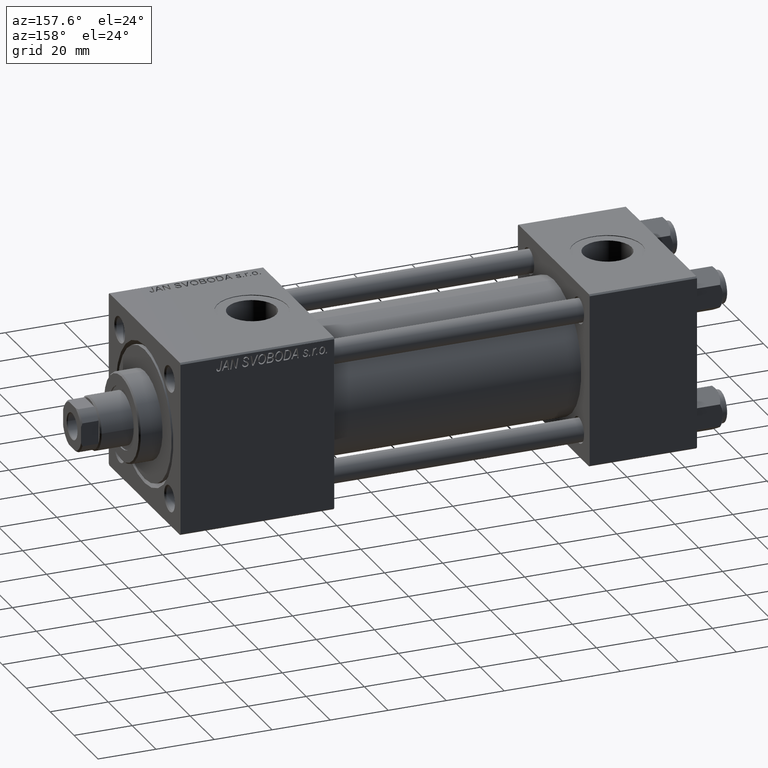
[diagram: clean part render]
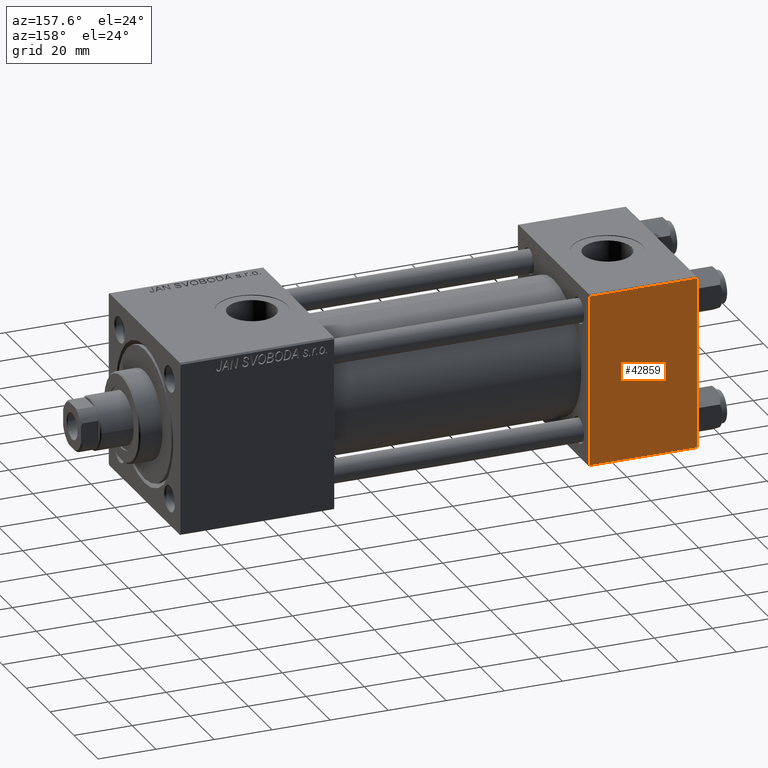
[diagram: same view with one face highlighted and labeled with its STEP entity id]
A machine part, auxiliary view. The second image highlights one B-rep face of the part: STEP entity #42859.
In plain terms, the highlighted planar face has unit normal (0, 1, 0).
Its self-contained STEP definition (entity closure, byte-faithful):
#1184 = VERTEX_POINT ( 'NONE', #28170 ) ;
#1346 = DIRECTION ( 'NONE',  ( -1.000000000000000000, 0.000000000000000000, 0.000000000000000000 ) ) ;
#1980 = EDGE_CURVE ( 'NONE', #27691, #19787, #19592, .T. ) ;
#4794 = ORIENTED_EDGE ( 'NONE', *, *, #1980, .T. ) ;
#7045 = LINE ( 'NONE', #27021, #8107 ) ;
#7221 = AXIS2_PLACEMENT_3D ( 'NONE', #27472, #43489, #51098 ) ;
#7757 = CARTESIAN_POINT ( 'NONE',  ( 37.00000000000000000, 29.99999999999999289, 29.50000000000000000 ) ) ;
#8107 = VECTOR ( 'NONE', #23064, 1000.000000000000000 ) ;
#9486 = LINE ( 'NONE', #41267, #37003 ) ;
#10679 = FACE_OUTER_BOUND ( 'NONE', #25991, .T. ) ;
#15151 = DIRECTION ( 'NONE',  ( 1.000000000000000000, 0.000000000000000000, 0.000000000000000000 ) ) ;
#15575 = EDGE_CURVE ( 'NONE', #19787, #26207, #40567, .T. ) ;
#19163 = ORIENTED_EDGE ( 'NONE', *, *, #40219, .F. ) ;
#19592 = LINE ( 'NONE', #7757, #36206 ) ;
#19787 = VERTEX_POINT ( 'NONE', #51773 ) ;
#20858 = CARTESIAN_POINT ( 'NONE',  ( 37.00000000000000000, 29.99999999999999289, 30.00000000000000000 ) ) ;
#23064 = DIRECTION ( 'NONE',  ( 0.000000000000000000, 0.000000000000000000, -1.000000000000000000 ) ) ;
#23553 = EDGE_CURVE ( 'NONE', #26207, #1184, #9486, .T. ) ;
#25991 = EDGE_LOOP ( 'NONE', ( #38697, #39675, #19163, #4794 ) ) ;
#26207 = VERTEX_POINT ( 'NONE', #29631 ) ;
#27021 = CARTESIAN_POINT ( 'NONE',  ( 0.000000000000000000, 29.99999999999999289, 30.00000000000000000 ) ) ;
#27472 = CARTESIAN_POINT ( 'NONE',  ( 37.00000000000000000, 29.99999999999999289, 30.00000000000000000 ) ) ;
#27691 = VERTEX_POINT ( 'NONE', #29864 ) ;
#28170 = CARTESIAN_POINT ( 'NONE',  ( 0.000000000000000000, 29.99999999999999289, -29.50000000000000000 ) ) ;
#29631 = CARTESIAN_POINT ( 'NONE',  ( 37.00000000000000000, 29.99999999999999289, -29.50000000000000000 ) ) ;
#29864 = CARTESIAN_POINT ( 'NONE',  ( 0.000000000000000000, 29.99999999999999289, 29.50000000000000000 ) ) ;
#31414 = PLANE ( 'NONE',  #7221 ) ;
#36206 = VECTOR ( 'NONE', #15151, 1000.000000000000000 ) ;
#37003 = VECTOR ( 'NONE', #1346, 1000.000000000000000 ) ;
#38697 = ORIENTED_EDGE ( 'NONE', *, *, #15575, .T. ) ;
#39675 = ORIENTED_EDGE ( 'NONE', *, *, #23553, .T. ) ;
#40219 = EDGE_CURVE ( 'NONE', #27691, #1184, #7045, .T. ) ;
#40567 = LINE ( 'NONE', #20858, #41773 ) ;
#41267 = CARTESIAN_POINT ( 'NONE',  ( 37.00000000000000000, 29.99999999999999289, -29.50000000000000000 ) ) ;
#41773 = VECTOR ( 'NONE', #48687, 1000.000000000000000 ) ;
#42859 = ADVANCED_FACE ( 'NONE', ( #10679 ), #31414, .T. ) ;
#43489 = DIRECTION ( 'NONE',  ( -0.000000000000000000, 1.000000000000000000, 0.000000000000000000 ) ) ;
#48687 = DIRECTION ( 'NONE',  ( 0.000000000000000000, 0.000000000000000000, -1.000000000000000000 ) ) ;
#51098 = DIRECTION ( 'NONE',  ( 0.000000000000000000, -0.000000000000000000, 1.000000000000000000 ) ) ;
#51773 = CARTESIAN_POINT ( 'NONE',  ( 37.00000000000000000, 29.99999999999999289, 29.50000000000000000 ) ) ;